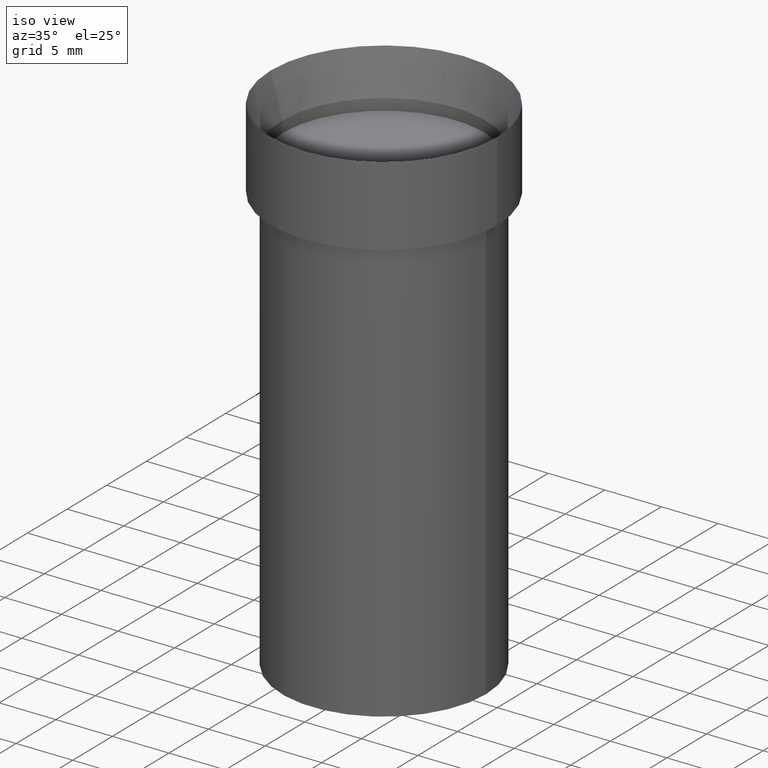
[diagram: clean part render]
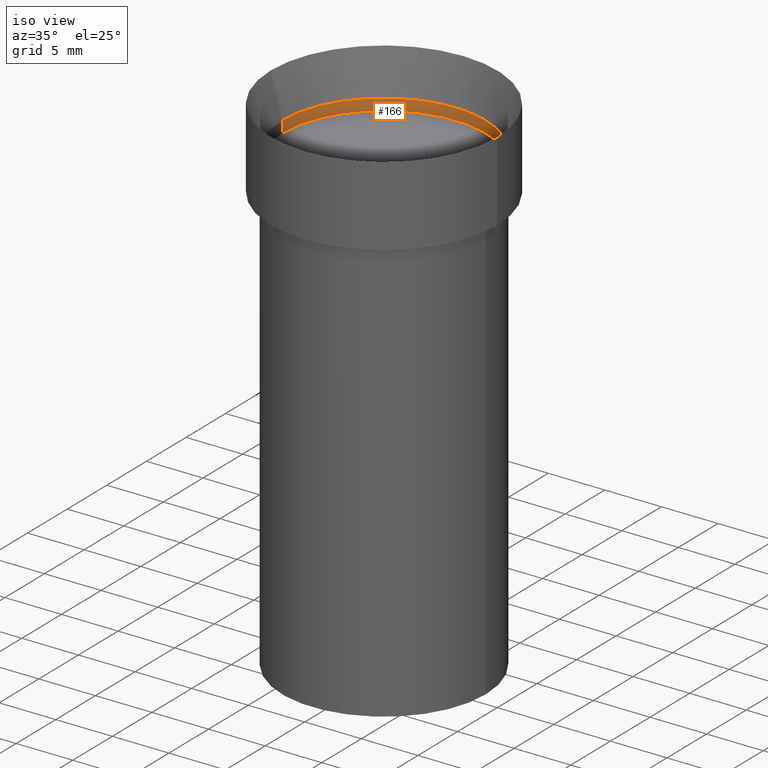
[diagram: same view with one face highlighted and labeled with its STEP entity id]
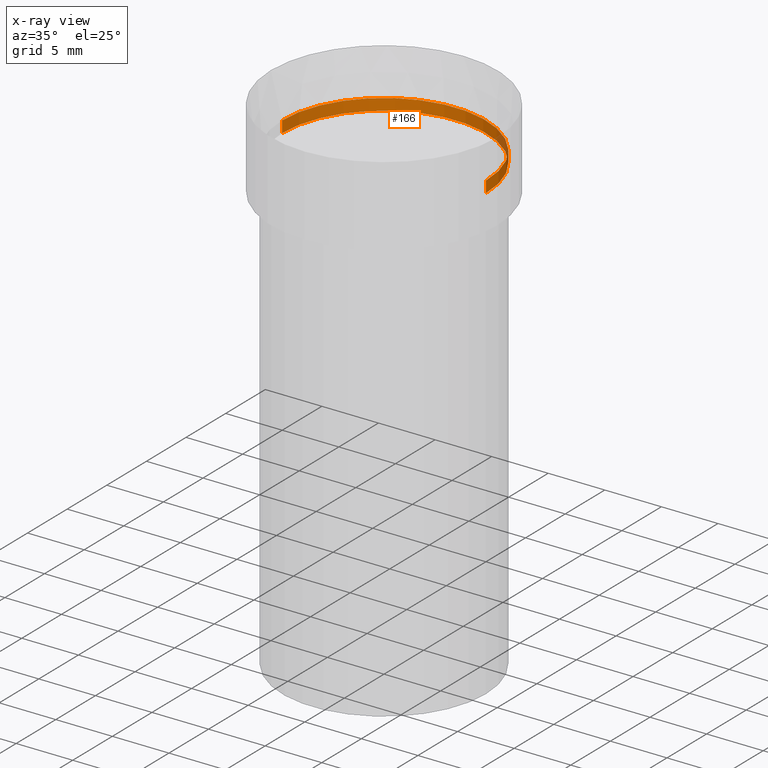
[diagram: x-ray of the same camera — body ghosted, the highlighted face saturated]
A machine part, iso view. The second image highlights one B-rep face of the part: STEP entity #166.
The next image is the same camera in x-ray: the body ghosted, the highlighted face saturated — about 4% of this face is hidden behind the body in this view.
In plain terms, the highlighted cylindrical surface (partial cylindrical patch) has radius 9.0005 mm, axis along (0, -0, -1).
Its self-contained STEP definition (entity closure, byte-faithful):
#11 = CARTESIAN_POINT ( 'NONE',  ( -1.841438011057409467E-30, 2.629085448148890871E-16, 0.07530000000000006133 ) ) ;
#26 = LINE ( 'NONE', #67, #31 ) ;
#31 = VECTOR ( 'NONE', #171, 39.37007874015748143 ) ;
#36 = EDGE_CURVE ( 'NONE', #222, #124, #26, .T. ) ;
#58 = CARTESIAN_POINT ( 'NONE',  ( -2.812289127112907395E-30, 4.015203539669618446E-16, 0.1150000000000000189 ) ) ;
#67 = CARTESIAN_POINT ( 'NONE',  ( 0.3543499999999999983, -2.431017465510342392E-15, 1.712721831774753992E-29 ) ) ;
#73 = EDGE_CURVE ( 'NONE', #139, #404, #277, .T. ) ;
#91 = CIRCLE ( 'NONE', #408, 0.3543500000000000538 ) ;
#108 = CARTESIAN_POINT ( 'NONE',  ( -0.3543499999999999983, 2.474412824838128694E-15, -1.727873240503289749E-29 ) ) ;
#113 = AXIS2_PLACEMENT_3D ( 'NONE', #58, #305, #132 ) ;
#123 = ORIENTED_EDGE ( 'NONE', *, *, #149, .F. ) ;
#124 = VERTEX_POINT ( 'NONE', #381 ) ;
#132 = DIRECTION ( 'NONE',  ( -1.000000000000000000, 6.982962677686266711E-15, 0.000000000000000000 ) ) ;
#134 = DIRECTION ( 'NONE',  ( 2.445468806185136597E-29, -3.491481338843145583E-15, -1.000000000000000000 ) ) ;
#139 = VERTEX_POINT ( 'NONE', #375 ) ;
#149 = EDGE_CURVE ( 'NONE', #139, #222, #213, .T. ) ;
#159 = CARTESIAN_POINT ( 'NONE',  ( -0.3543500000000000538, 2.737321369653018176E-15, 0.07530000000000006133 ) ) ;
#164 = CARTESIAN_POINT ( 'NONE',  ( 0.000000000000000000, 0.000000000000000000, 0.000000000000000000 ) ) ;
#166 = ADVANCED_FACE ( 'NONE', ( #274 ), #412, .F. ) ;
#171 = DIRECTION ( 'NONE',  ( 2.445468806185136877E-29, -3.491481338843145188E-15, -1.000000000000000000 ) ) ;
#184 = VECTOR ( 'NONE', #242, 39.37007874015748143 ) ;
#197 = EDGE_LOOP ( 'NONE', ( #387, #123, #363, #328 ) ) ;
#198 = DIRECTION ( 'NONE',  ( 2.445468806185136597E-29, -3.491481338843145583E-15, -1.000000000000000000 ) ) ;
#213 = CIRCLE ( 'NONE', #113, 0.3543499999999999428 ) ;
#214 = EDGE_CURVE ( 'NONE', #404, #124, #91, .T. ) ;
#222 = VERTEX_POINT ( 'NONE', #354 ) ;
#229 = DIRECTION ( 'NONE',  ( -1.000000000000000000, 6.982962677686266711E-15, -4.876176775795935793E-29 ) ) ;
#242 = DIRECTION ( 'NONE',  ( 2.445468806185136877E-29, -3.491481338843145188E-15, -1.000000000000000000 ) ) ;
#274 = FACE_OUTER_BOUND ( 'NONE', #197, .T. ) ;
#277 = LINE ( 'NONE', #108, #184 ) ;
#305 = DIRECTION ( 'NONE',  ( 2.445468806185136597E-29, -3.491481338843145583E-15, -1.000000000000000000 ) ) ;
#328 = ORIENTED_EDGE ( 'NONE', *, *, #214, .T. ) ;
#354 = CARTESIAN_POINT ( 'NONE',  ( 0.3543499999999999428, -1.953909421918648105E-15, 0.1150000000000000189 ) ) ;
#363 = ORIENTED_EDGE ( 'NONE', *, *, #73, .T. ) ;
#375 = CARTESIAN_POINT ( 'NONE',  ( -0.3543499999999999428, 3.315500661029671558E-15, 0.1150000000000000189 ) ) ;
#381 = CARTESIAN_POINT ( 'NONE',  ( 0.3543500000000000538, -2.098803016119417641E-15, 0.07530000000000006133 ) ) ;
#387 = ORIENTED_EDGE ( 'NONE', *, *, #36, .F. ) ;
#404 = VERTEX_POINT ( 'NONE', #159 ) ;
#408 = AXIS2_PLACEMENT_3D ( 'NONE', #11, #198, #429 ) ;
#412 = CYLINDRICAL_SURFACE ( 'NONE', #442, 0.3543499999999999983 ) ;
#429 = DIRECTION ( 'NONE',  ( -1.000000000000000000, 6.982962677686266711E-15, 0.000000000000000000 ) ) ;
#442 = AXIS2_PLACEMENT_3D ( 'NONE', #164, #134, #229 ) ;